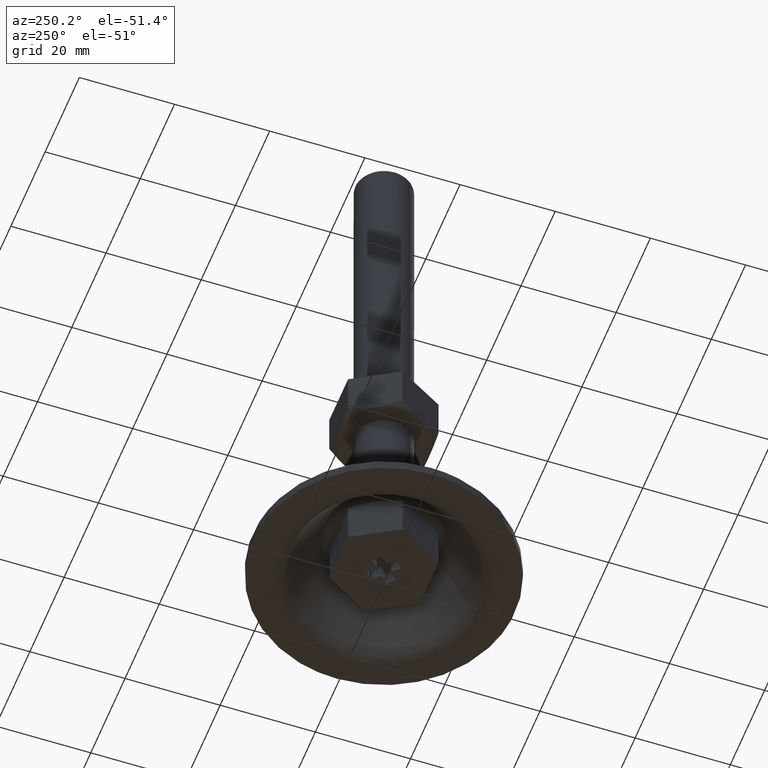
[diagram: clean part render]
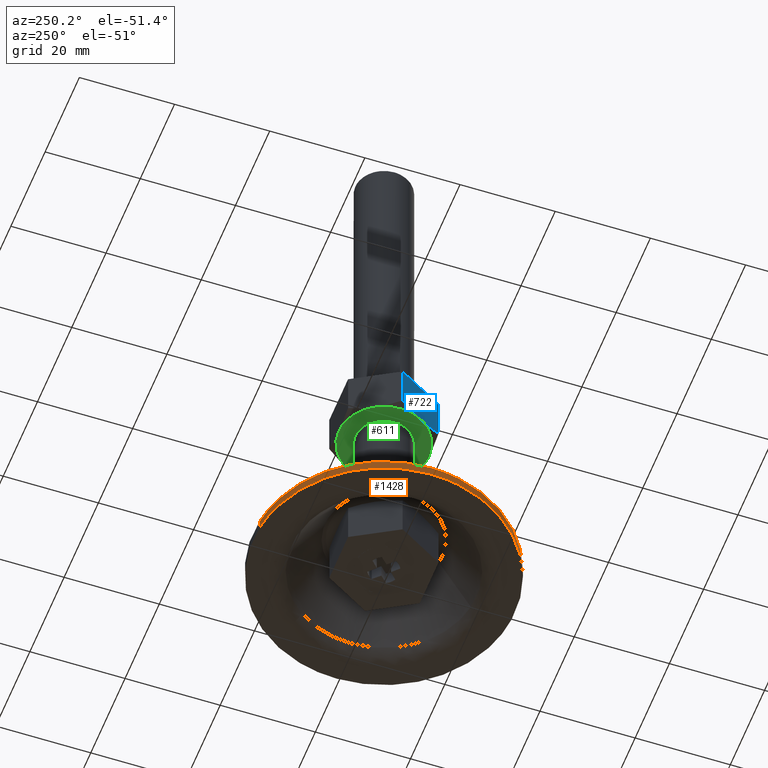
[diagram: same view with three faces highlighted in distinct colors, each labeled with its STEP entity id]
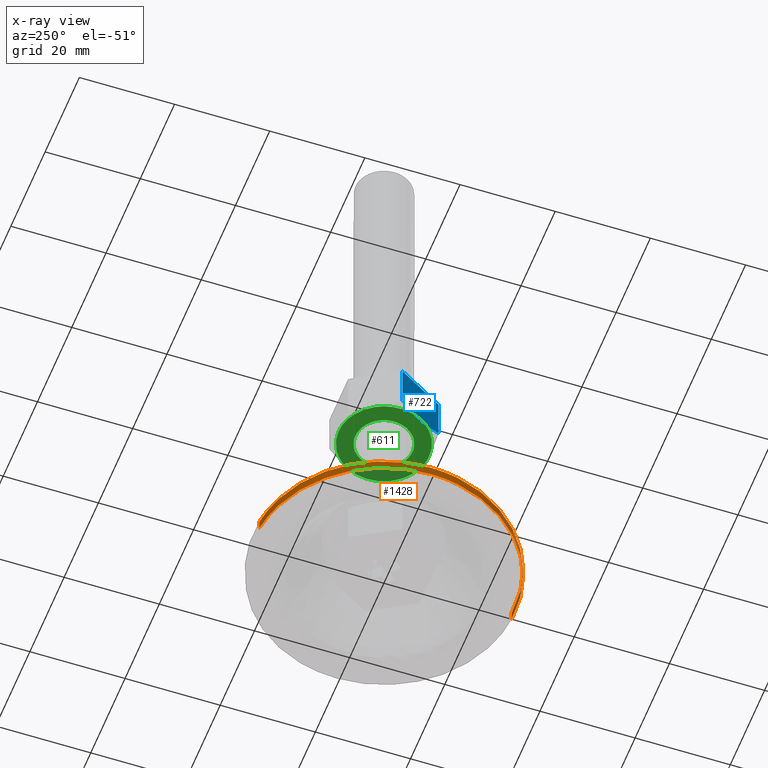
[diagram: x-ray of the same camera — body ghosted, the three highlighted faces saturated]
A machine part, auxiliary view with three faces highlighted in distinct colors.
The next image is the same camera in x-ray (body ghosted, the three faces saturated) — at least one of them is partly hidden behind the body in this view.
Their STEP definitions:

[orange] entity #1428 — the highlighted face is a freeform B-spline surface patch.
#1265=CARTESIAN_POINT('',(-3.245906135386482,27.307766172995461,-9.862044E-013));
#1266=VERTEX_POINT('',#1265);
#1284=CARTESIAN_POINT('',(-3.245906571231146,27.307766121189850,2.0));
#1285=VERTEX_POINT('',#1284);
#1286=CARTESIAN_POINT('',(-3.245906571231146,27.307766121189850,2.0));
#1287=CARTESIAN_POINT('',(-3.245906135386482,27.307766172995461,-9.862044E-013));
#1288=QUASI_UNIFORM_CURVE('',1,(#1286,#1287),.UNSPECIFIED.,.F.,.U.);
#1289=EDGE_CURVE('',#1285,#1266,#1288,.T.);
#1308=CARTESIAN_POINT('',(1.678818002334577,-27.448707986255979,2.0));
#1309=VERTEX_POINT('',#1308);
#1323=CARTESIAN_POINT('',(1.678817792251848,-27.448707999104929,1.037434E-012));
#1324=VERTEX_POINT('',#1323);
#1325=CARTESIAN_POINT('',(1.678818002334577,-27.448707986255979,2.0));
#1326=CARTESIAN_POINT('',(1.678817792251848,-27.448707999104929,1.037434E-012));
#1327=QUASI_UNIFORM_CURVE('',1,(#1325,#1326),.UNSPECIFIED.,.F.,.U.);
#1328=EDGE_CURVE('',#1309,#1324,#1327,.T.);
#1346=CARTESIAN_POINT('',(1.678834837208567,-27.448706956601331,2.050000000000000));
#1347=CARTESIAN_POINT('',(-25.769872119392776,-29.127541793809893,2.050000000000001));
#1348=CARTESIAN_POINT('',(-27.448706956601331,-1.678834837208567,2.050000000000000));
#1349=CARTESIAN_POINT('',(-29.034120410144507,24.242445998086275,2.050000000000000));
#1350=CARTESIAN_POINT('',(-3.245941453060858,27.307761975000822,2.050000000000000));
#1351=CARTESIAN_POINT('',(1.678834837208567,-27.448706956601331,-0.051250000000000));
#1352=CARTESIAN_POINT('',(-25.769872119392776,-29.127541793809893,-0.051250000000000));
#1353=CARTESIAN_POINT('',(-27.448706956601331,-1.678834837208567,-0.051250000000000));
#1354=CARTESIAN_POINT('',(-29.034120410144507,24.242445998086275,-0.051250000000000));
#1355=CARTESIAN_POINT('',(-3.245941453060858,27.307761975000822,-0.051250000000000));
#1363=(BOUNDED_SURFACE()B_SPLINE_SURFACE(2,1,((#1346,#1351),(#1347,#1352),(#1348,#1353),(#1349,#1354),(#1350,#1355)),.UNSPECIFIED.,.F.,.F.,.U.)B_SPLINE_SURFACE_WITH_KNOTS((3,2,3),(2,2),(0.0,45.563491861040447,89.304444047639265),(0.0,2.101250000000000),.UNSPECIFIED.)GEOMETRIC_REPRESENTATION_ITEM()RATIONAL_B_SPLINE_SURFACE(((1.0,1.0),(0.707106781186548,0.707106781186548),(1.0,1.0),(0.718822509939086,0.718822509939086),(0.977505800795127,0.977505800795127)))REPRESENTATION_ITEM('')SURFACE());
#1364=CARTESIAN_POINT('',(-27.500000000000000,0.0,0.0));
#1365=VERTEX_POINT('',#1364);
#1366=CARTESIAN_POINT('',(-27.500000000000000,0.0,0.0));
#1367=CARTESIAN_POINT('',(-27.499999999999993,24.424831275134483,0.0));
#1368=CARTESIAN_POINT('',(-3.245906135386482,27.307766172995464,-9.862044E-013));
#1376=(BOUNDED_CURVE()B_SPLINE_CURVE(2,(#1366,#1367,#1368),.UNSPECIFIED.,.F.,.U.)B_SPLINE_CURVE_WITH_KNOTS((3,3),(0.0,0.229562692090941),.UNSPECIFIED.)CURVE()GEOMETRIC_REPRESENTATION_ITEM()RATIONAL_B_SPLINE_CURVE((1.0,0.731050576776011,0.956027182604860))REPRESENTATION_ITEM(''));
#1377=EDGE_CURVE('',#1365,#1266,#1376,.T.);
#1378=ORIENTED_EDGE('',*,*,#1377,.F.);
#1379=CARTESIAN_POINT('',(1.678817792251848,-27.448707999104922,1.037434E-012));
#1380=CARTESIAN_POINT('',(0.840192444337036,-27.500000000000007,0.0));
#1381=CARTESIAN_POINT('',(0.0,-27.500000000000000,0.0));
#1382=CARTESIAN_POINT('',(-27.499999999999993,-27.499999999999993,0.0));
#1383=CARTESIAN_POINT('',(-27.500000000000000,0.0,0.0));
#1391=(BOUNDED_CURVE()B_SPLINE_CURVE(2,(#1379,#1380,#1381,#1382,#1383),.UNSPECIFIED.,.F.,.U.)B_SPLINE_CURVE_WITH_KNOTS((3,2,3),(0.739333069389194,0.750000000000000,1.0),.UNSPECIFIED.)CURVE()GEOMETRIC_REPRESENTATION_ITEM()RATIONAL_B_SPLINE_CURVE((0.976072271310210,0.987502913434165,1.0,0.707106781186547,1.0))REPRESENTATION_ITEM(''));
#1392=EDGE_CURVE('',#1324,#1365,#1391,.T.);
#1393=ORIENTED_EDGE('',*,*,#1392,.F.);
#1394=ORIENTED_EDGE('',*,*,#1328,.F.);
#1395=CARTESIAN_POINT('',(-27.500000000000000,0.0,2.0));
#1396=VERTEX_POINT('',#1395);
#1397=CARTESIAN_POINT('',(1.678818002334577,-27.448707986255972,2.0));
#1398=CARTESIAN_POINT('',(0.840192549672923,-27.500000000000000,2.000000000000000));
#1399=CARTESIAN_POINT('',(0.0,-27.500000000000000,2.0));
#1400=CARTESIAN_POINT('',(-27.499999999999993,-27.499999999999993,2.0));
#1401=CARTESIAN_POINT('',(-27.500000000000000,0.0,2.0));
#1409=(BOUNDED_CURVE()B_SPLINE_CURVE(2,(#1397,#1398,#1399,#1400,#1401),.UNSPECIFIED.,.F.,.U.)B_SPLINE_CURVE_WITH_KNOTS((3,2,3),(0.739333068068581,0.750000000000000,1.0),.UNSPECIFIED.)CURVE()GEOMETRIC_REPRESENTATION_ITEM()RATIONAL_B_SPLINE_CURVE((0.976072268479883,0.987502911886971,1.0,0.707106781186547,1.0))REPRESENTATION_ITEM(''));
#1410=EDGE_CURVE('',#1309,#1396,#1409,.T.);
#1411=ORIENTED_EDGE('',*,*,#1410,.T.);
#1412=CARTESIAN_POINT('',(-27.500000000000000,0.0,2.0));
#1413=CARTESIAN_POINT('',(-27.500000000000000,24.424830882558645,1.999999999999999));
#1414=CARTESIAN_POINT('',(-3.245906571231146,27.307766121189854,2.0));
#1422=(BOUNDED_CURVE()B_SPLINE_CURVE(2,(#1412,#1413,#1414),.UNSPECIFIED.,.F.,.U.)B_SPLINE_CURVE_WITH_KNOTS((3,3),(0.0,0.229562689393570),.UNSPECIFIED.)CURVE()GEOMETRIC_REPRESENTATION_ITEM()RATIONAL_B_SPLINE_CURVE((1.0,0.731050579936178,0.956027177317891))REPRESENTATION_ITEM(''));
#1423=EDGE_CURVE('',#1396,#1285,#1422,.T.);
#1424=ORIENTED_EDGE('',*,*,#1423,.T.);
#1425=ORIENTED_EDGE('',*,*,#1289,.T.);
#1426=EDGE_LOOP('',(#1378,#1393,#1394,#1411,#1424,#1425));
#1427=FACE_OUTER_BOUND('',#1426,.T.);
#1428=ADVANCED_FACE('',(#1427),#1363,.T.);

[blue] entity #722 — the highlighted face is a freeform B-spline surface patch.
#488=CARTESIAN_POINT('',(-8.227241312009770,-4.750000369565070,42.0));
#489=VERTEX_POINT('',#488);
#503=CARTESIAN_POINT('',(-5.484827328095640,-9.500000000000000,42.848505615152803));
#504=VERTEX_POINT('',#503);
#518=CARTESIAN_POINT('',(-8.227241312009770,-4.750000369565070,42.0));
#519=CARTESIAN_POINT('',(-8.112392944928020,-4.948922650479445,42.000000849196297));
#520=CARTESIAN_POINT('',(-7.996988024051120,-5.148809820748156,42.004845660670242));
#521=CARTESIAN_POINT('',(-7.765462048240204,-5.549824541757396,42.024220132945757));
#522=CARTESIAN_POINT('',(-7.649230483554620,-5.751143500986935,42.038873426942573));
#523=CARTESIAN_POINT('',(-7.301698894215704,-6.353085822372341,42.096876845309353));
#524=CARTESIAN_POINT('',(-7.071564693543126,-6.751689918323849,42.154303338927107));
#525=CARTESIAN_POINT('',(-6.385259316087937,-7.940405605638790,42.376053448954302));
#526=CARTESIAN_POINT('',(-5.933169399037340,-8.723448248358062,42.589654932290927));
#527=CARTESIAN_POINT('',(-5.484827328095640,-9.500000000000000,42.848505615152803));
#528=B_SPLINE_CURVE_WITH_KNOTS('',3,(#518,#519,#520,#521,#522,#523,#524,#525,#526,#527),.UNSPECIFIED.,.F.,.U.,(4,2,2,2,4),(0.500936471483383,0.562500000000000,0.625000000000000,0.750000000000000,1.0),.UNSPECIFIED.);
#529=EDGE_CURVE('',#489,#504,#528,.T.);
#561=CARTESIAN_POINT('',(-10.969654999999999,-5.030698E-014,42.848505615152803));
#562=VERTEX_POINT('',#561);
#563=CARTESIAN_POINT('',(-10.969654999999999,-5.030698E-014,42.848505615152803));
#564=CARTESIAN_POINT('',(-10.521870862864761,-0.775584813741650,42.589977323038553));
#565=CARTESIAN_POINT('',(-10.070822011563889,-1.556824277833915,42.376903158107488));
#566=CARTESIAN_POINT('',(-9.387193530246178,-2.740903445406389,42.155520466199562));
#567=CARTESIAN_POINT('',(-9.158138682537480,-3.137638047336049,42.098136922177268));
#568=CARTESIAN_POINT('',(-8.697361368014910,-3.935727702647830,42.020510696067561));
#569=CARTESIAN_POINT('',(-8.465636596086949,-4.337086748604351,42.000300107738958));
#570=CARTESIAN_POINT('',(-8.230734801037784,-4.743948559579471,42.000000850211777));
#571=CARTESIAN_POINT('',(-8.228987923941970,-4.746974239219785,41.999999745959101));
#572=CARTESIAN_POINT('',(-8.227241312009770,-4.750000369565070,42.0));
#573=B_SPLINE_CURVE_WITH_KNOTS('',3,(#563,#564,#565,#566,#567,#568,#569,#570,#571,#572),.UNSPECIFIED.,.F.,.U.,(4,2,2,2,4),(0.0,0.250000000000000,0.375000000000000,0.500000000000000,0.500936471483383),.UNSPECIFIED.);
#574=EDGE_CURVE('',#562,#489,#573,.T.);
#633=CARTESIAN_POINT('',(-10.969655000000021,0.0,52.0));
#634=VERTEX_POINT('',#633);
#640=CARTESIAN_POINT('',(-5.484827000000000,-9.500000000000000,52.0));
#641=VERTEX_POINT('',#640);
#642=CARTESIAN_POINT('',(-10.969655000000021,0.0,52.0));
#643=CARTESIAN_POINT('',(-5.484827000000000,-9.500000000000000,52.0));
#644=QUASI_UNIFORM_CURVE('',1,(#642,#643),.UNSPECIFIED.,.F.,.U.);
#645=EDGE_CURVE('',#634,#641,#644,.T.);
#694=CARTESIAN_POINT('',(-5.484827000000000,-9.500000000000000,52.0));
#695=CARTESIAN_POINT('',(-5.484827328095640,-9.500000000000000,42.848505615152803));
#696=QUASI_UNIFORM_CURVE('',1,(#694,#695),.UNSPECIFIED.,.F.,.U.);
#697=EDGE_CURVE('',#641,#504,#696,.T.);
#706=CARTESIAN_POINT('',(-5.210859852030654,-9.974524981587155,41.500500019381953));
#707=CARTESIAN_POINT('',(-11.243622295083910,0.474525236397013,41.500500019381953));
#708=CARTESIAN_POINT('',(-5.210859852030654,-9.974524981587155,52.499500248838970));
#709=CARTESIAN_POINT('',(-11.243622295083910,0.474525236397013,52.499500248838970));
#710=B_SPLINE_SURFACE_WITH_KNOTS('',1,1,((#706,#708),(#707,#709)),.UNSPECIFIED.,.F.,.F.,.U.,(2,2),(2,2),(0.0,12.065524155720251),(0.0,10.999000229457030),.UNSPECIFIED.);
#711=CARTESIAN_POINT('',(-10.969655000000021,0.0,52.0));
#712=CARTESIAN_POINT('',(-10.969654999999999,-5.030698E-014,42.848505615152803));
#713=QUASI_UNIFORM_CURVE('',1,(#711,#712),.UNSPECIFIED.,.F.,.U.);
#714=EDGE_CURVE('',#634,#562,#713,.T.);
#715=ORIENTED_EDGE('',*,*,#714,.T.);
#716=ORIENTED_EDGE('',*,*,#574,.T.);
#717=ORIENTED_EDGE('',*,*,#529,.T.);
#718=ORIENTED_EDGE('',*,*,#697,.F.);
#719=ORIENTED_EDGE('',*,*,#645,.F.);
#720=EDGE_LOOP('',(#715,#716,#717,#718,#719));
#721=FACE_OUTER_BOUND('',#720,.T.);
#722=ADVANCED_FACE('',(#721),#710,.F.);

[green] entity #611 — the highlighted face is a freeform B-spline surface patch.
#62=CARTESIAN_POINT('',(-6.0,0.0,42.0));
#63=VERTEX_POINT('',#62);
#64=CARTESIAN_POINT('',(-0.470754574391571,-5.981504002396839,42.0));
#65=VERTEX_POINT('',#64);
#66=CARTESIAN_POINT('',(-6.0,0.0,42.0));
#67=CARTESIAN_POINT('',(-6.000000000000001,-5.546342949903671,42.0));
#68=CARTESIAN_POINT('',(-0.470754574391571,-5.981504002396839,42.000000000000007));
#76=(BOUNDED_CURVE()B_SPLINE_CURVE(2,(#66,#67,#68),.UNSPECIFIED.,.F.,.U.)B_SPLINE_CURVE_WITH_KNOTS((3,3),(0.0,0.236331300631363),.UNSPECIFIED.)CURVE()GEOMETRIC_REPRESENTATION_ITEM()RATIONAL_B_SPLINE_CURVE((1.0,0.723120658606842,0.969723356168885))REPRESENTATION_ITEM(''));
#77=EDGE_CURVE('',#63,#65,#76,.T.);
#79=CARTESIAN_POINT('',(0.470754574391570,5.981504002396838,42.0));
#80=VERTEX_POINT('',#79);
#81=CARTESIAN_POINT('',(0.470754574391571,5.981504002396838,42.000000000000007));
#82=CARTESIAN_POINT('',(0.235740642070631,6.0,42.000000000000007));
#83=CARTESIAN_POINT('',(0.0,6.0,42.0));
#84=CARTESIAN_POINT('',(-6.0,6.0,42.000000000000007));
#85=CARTESIAN_POINT('',(-6.0,0.0,42.0));
#93=(BOUNDED_CURVE()B_SPLINE_CURVE(2,(#81,#82,#83,#84,#85),.UNSPECIFIED.,.F.,.U.)B_SPLINE_CURVE_WITH_KNOTS((3,2,3),(0.736331300631363,0.750000000000000,1.0),.UNSPECIFIED.)CURVE()GEOMETRIC_REPRESENTATION_ITEM()RATIONAL_B_SPLINE_CURVE((0.969723356168885,0.983986122579706,1.0,0.707106781186548,1.0))REPRESENTATION_ITEM(''));
#94=EDGE_CURVE('',#80,#63,#93,.T.);
#161=CARTESIAN_POINT('',(6.0,0.0,42.0));
#162=VERTEX_POINT('',#161);
#163=CARTESIAN_POINT('',(-0.470754574391571,-5.981504002396839,42.000000000000007));
#164=CARTESIAN_POINT('',(-0.235740642070631,-6.000000000000001,42.000000000000007));
#165=CARTESIAN_POINT('',(0.0,-6.0,42.0));
#166=CARTESIAN_POINT('',(6.0,-6.0,42.000000000000007));
#167=CARTESIAN_POINT('',(6.0,0.0,42.0));
#175=(BOUNDED_CURVE()B_SPLINE_CURVE(2,(#163,#164,#165,#166,#167),.UNSPECIFIED.,.F.,.U.)B_SPLINE_CURVE_WITH_KNOTS((3,2,3),(0.236331300631363,0.250000000000000,0.500000000000000),.UNSPECIFIED.)CURVE()GEOMETRIC_REPRESENTATION_ITEM()RATIONAL_B_SPLINE_CURVE((0.969723356168885,0.983986122579706,1.0,0.707106781186548,1.0))REPRESENTATION_ITEM(''));
#176=EDGE_CURVE('',#65,#162,#175,.T.);
#210=CARTESIAN_POINT('',(6.0,0.0,42.0));
#211=CARTESIAN_POINT('',(6.0,5.546342949903673,42.0));
#212=CARTESIAN_POINT('',(0.470754574391571,5.981504002396838,42.0));
#220=(BOUNDED_CURVE()B_SPLINE_CURVE(2,(#210,#211,#212),.UNSPECIFIED.,.F.,.U.)B_SPLINE_CURVE_WITH_KNOTS((3,3),(0.500000000000000,0.736331300631363),.UNSPECIFIED.)CURVE()GEOMETRIC_REPRESENTATION_ITEM()RATIONAL_B_SPLINE_CURVE((1.0,0.723120658606842,0.969723356168885))REPRESENTATION_ITEM(''));
#221=EDGE_CURVE('',#162,#80,#220,.T.);
#240=CARTESIAN_POINT('',(-8.227241312009770,4.750000369565059,42.0));
#241=VERTEX_POINT('',#240);
#242=CARTESIAN_POINT('',(0.0,9.500000164047821,42.0));
#243=VERTEX_POINT('',#242);
#244=CARTESIAN_POINT('',(-8.227241312009777,4.750000369565063,42.0));
#245=CARTESIAN_POINT('',(-5.484827430665215,9.500000164047821,42.0));
#246=CARTESIAN_POINT('',(0.0,9.500000164047821,42.0));
#254=(BOUNDED_CURVE()B_SPLINE_CURVE(2,(#244,#245,#246),.UNSPECIFIED.,.F.,.U.)CURVE()GEOMETRIC_REPRESENTATION_ITEM()QUASI_UNIFORM_CURVE()RATIONAL_B_SPLINE_CURVE((1.0,0.866025412521910,1.0))REPRESENTATION_ITEM(''));
#255=EDGE_CURVE('',#241,#243,#254,.T.);
#302=CARTESIAN_POINT('',(8.227241687009791,4.749999720045980,42.0));
#303=VERTEX_POINT('',#302);
#304=CARTESIAN_POINT('',(0.0,9.500000164047821,42.0));
#305=CARTESIAN_POINT('',(5.484827930665236,9.500000164047821,41.999999999999993));
#306=CARTESIAN_POINT('',(8.227241687009791,4.749999720045981,42.0));
#314=(BOUNDED_CURVE()B_SPLINE_CURVE(2,(#304,#305,#306),.UNSPECIFIED.,.F.,.U.)CURVE()GEOMETRIC_REPRESENTATION_ITEM()QUASI_UNIFORM_CURVE()RATIONAL_B_SPLINE_CURVE((1.0,0.866025392785068,1.0))REPRESENTATION_ITEM(''));
#315=EDGE_CURVE('',#243,#303,#314,.T.);
#365=CARTESIAN_POINT('',(8.227241687009791,-4.749999720045980,42.0));
#366=VERTEX_POINT('',#365);
#382=CARTESIAN_POINT('',(8.227241687009791,4.749999720045981,42.0));
#383=CARTESIAN_POINT('',(10.969655025378277,0.0,42.0));
#384=CARTESIAN_POINT('',(8.227241687009792,-4.749999720045979,42.0));
#392=(BOUNDED_CURVE()B_SPLINE_CURVE(2,(#382,#383,#384),.UNSPECIFIED.,.F.,.U.)CURVE()GEOMETRIC_REPRESENTATION_ITEM()QUASI_UNIFORM_CURVE()RATIONAL_B_SPLINE_CURVE((1.0,0.866025425783180,1.0))REPRESENTATION_ITEM(''));
#393=EDGE_CURVE('',#303,#366,#392,.T.);
#425=CARTESIAN_POINT('',(0.0,-9.500000164047821,42.0));
#426=VERTEX_POINT('',#425);
#427=CARTESIAN_POINT('',(8.227241687009792,-4.749999720045979,42.0));
#428=CARTESIAN_POINT('',(5.484827930665237,-9.500000164047821,42.0));
#429=CARTESIAN_POINT('',(0.0,-9.500000164047821,42.0));
#437=(BOUNDED_CURVE()B_SPLINE_CURVE(2,(#427,#428,#429),.UNSPECIFIED.,.F.,.U.)CURVE()GEOMETRIC_REPRESENTATION_ITEM()QUASI_UNIFORM_CURVE()RATIONAL_B_SPLINE_CURVE((1.0,0.866025392785068,1.0))REPRESENTATION_ITEM(''));
#438=EDGE_CURVE('',#366,#426,#437,.T.);
#488=CARTESIAN_POINT('',(-8.227241312009770,-4.750000369565070,42.0));
#489=VERTEX_POINT('',#488);
#490=CARTESIAN_POINT('',(0.0,-9.500000164047821,42.0));
#491=CARTESIAN_POINT('',(-5.484827430665204,-9.500000164047821,42.0));
#492=CARTESIAN_POINT('',(-8.227241312009770,-4.750000369565075,42.0));
#500=(BOUNDED_CURVE()B_SPLINE_CURVE(2,(#490,#491,#492),.UNSPECIFIED.,.F.,.U.)CURVE()GEOMETRIC_REPRESENTATION_ITEM()QUASI_UNIFORM_CURVE()RATIONAL_B_SPLINE_CURVE((1.0,0.866025412521910,1.0))REPRESENTATION_ITEM(''));
#501=EDGE_CURVE('',#426,#489,#500,.T.);
#548=CARTESIAN_POINT('',(-8.227241312009770,-4.750000369565075,42.0));
#549=CARTESIAN_POINT('',(-10.969655525378297,-6.071532E-015,42.0));
#550=CARTESIAN_POINT('',(-8.227241312009779,4.750000369565063,42.0));
#558=(BOUNDED_CURVE()B_SPLINE_CURVE(2,(#548,#549,#550),.UNSPECIFIED.,.F.,.U.)CURVE()GEOMETRIC_REPRESENTATION_ITEM()QUASI_UNIFORM_CURVE()RATIONAL_B_SPLINE_CURVE((1.0,0.866025386309495,1.0))REPRESENTATION_ITEM(''));
#559=EDGE_CURVE('',#489,#241,#558,.T.);
#592=CARTESIAN_POINT('',(-10.449049965252041,10.449049965252099,42.0));
#593=CARTESIAN_POINT('',(10.449050644745000,10.449049965252099,42.0));
#594=CARTESIAN_POINT('',(-10.449049965252041,-10.449050644745061,42.0));
#595=CARTESIAN_POINT('',(10.449050644745000,-10.449050644745061,42.0));
#596=B_SPLINE_SURFACE_WITH_KNOTS('',1,1,((#592,#594),(#593,#595)),.UNSPECIFIED.,.F.,.F.,.U.,(2,2),(2,2),(0.0,20.898100609997041),(0.0,20.898100609997162),.UNSPECIFIED.);
#597=ORIENTED_EDGE('',*,*,#559,.T.);
#598=ORIENTED_EDGE('',*,*,#255,.T.);
#599=ORIENTED_EDGE('',*,*,#315,.T.);
#600=ORIENTED_EDGE('',*,*,#393,.T.);
#601=ORIENTED_EDGE('',*,*,#438,.T.);
#602=ORIENTED_EDGE('',*,*,#501,.T.);
#603=EDGE_LOOP('',(#597,#598,#599,#600,#601,#602));
#604=FACE_OUTER_BOUND('',#603,.T.);
#605=ORIENTED_EDGE('',*,*,#221,.T.);
#606=ORIENTED_EDGE('',*,*,#94,.T.);
#607=ORIENTED_EDGE('',*,*,#77,.T.);
#608=ORIENTED_EDGE('',*,*,#176,.T.);
#609=EDGE_LOOP('',(#605,#606,#607,#608));
#610=FACE_BOUND('',#609,.T.);
#611=ADVANCED_FACE('',(#604,#610),#596,.T.);